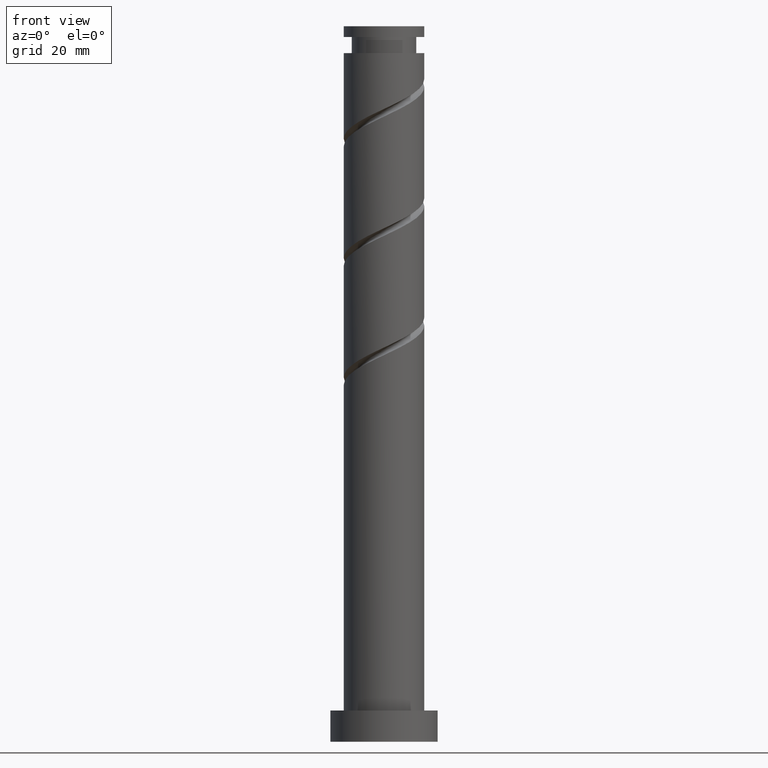
[diagram: clean part render]
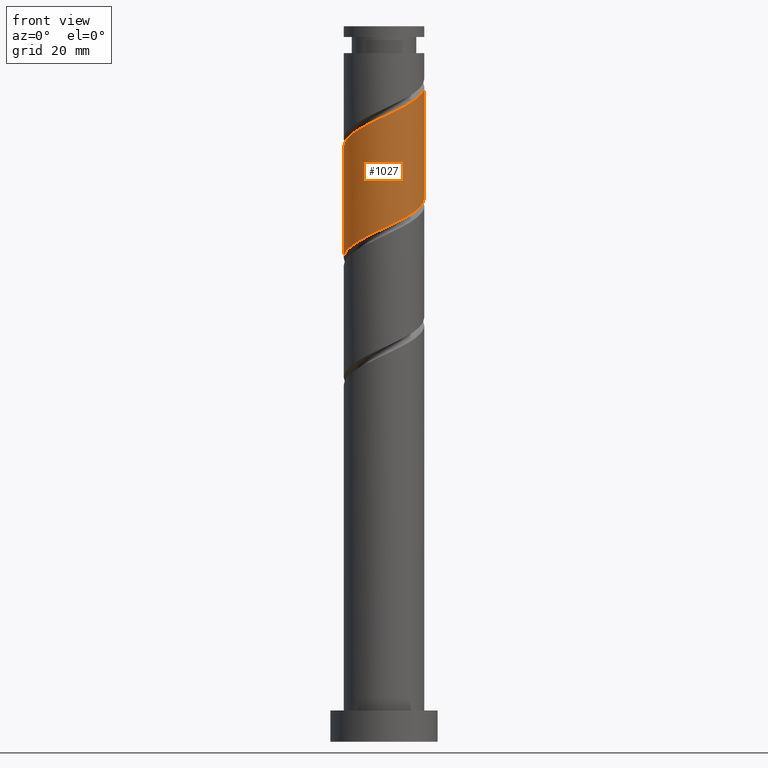
[diagram: same view with one face highlighted and labeled with its STEP entity id]
A machine part, front view. The second image highlights one B-rep face of the part: STEP entity #1027.
In plain terms, the highlighted cylindrical surface (partial cylindrical patch) has radius 9 mm, axis along (-0, -0, -1).
Its self-contained STEP definition (entity closure, byte-faithful):
#1 = CARTESIAN_POINT ( 'NONE',  ( 0.000000000000000000, 0.000000000000000000, 160.0000000000000000 ) ) ;
#8 = DIRECTION ( 'NONE',  ( -1.000000000000000000, 0.000000000000000000, 0.000000000000000000 ) ) ;
#30 = VERTEX_POINT ( 'NONE', #968 ) ;
#52 = DIRECTION ( 'NONE',  ( -0.000000000000000000, -0.000000000000000000, -1.000000000000000000 ) ) ;
#81 = CARTESIAN_POINT ( 'NONE',  ( 7.202715327721826988, -5.549354911298588711, 143.6846413087014014 ) ) ;
#102 = CARTESIAN_POINT ( 'NONE',  ( -0.7664509328121148490, -8.967304665705954747, 139.4422170662771521 ) ) ;
#104 = CARTESIAN_POINT ( 'NONE',  ( 8.910698058065477767, -1.809394412984799194, 120.6543382783983986 ) ) ;
#109 = CARTESIAN_POINT ( 'NONE',  ( 7.278955304606603782, -5.293090748658986655, 118.8361564602165572 ) ) ;
#157 = EDGE_CURVE ( 'NONE', #30, #462, #1073, .T. ) ;
#171 = DIRECTION ( 'NONE',  ( -0.000000000000000000, -0.000000000000000000, -1.000000000000000000 ) ) ;
#191 = CARTESIAN_POINT ( 'NONE',  ( -8.985107774542241188, -0.5175309458001439156, 133.3816110056711750 ) ) ;
#213 = CARTESIAN_POINT ( 'NONE',  ( 8.999999999999998224, -0.2589797387144074370, 121.3816947529810761 ) ) ;
#237 = CARTESIAN_POINT ( 'NONE',  ( -8.474388695875221700, -3.295327640004063863, 109.7452473693074779 ) ) ;
#241 = ORIENTED_EDGE ( 'NONE', *, *, #811, .F. ) ;
#319 = VECTOR ( 'NONE', #52, 1000.000000000000000 ) ;
#337 = CARTESIAN_POINT ( 'NONE',  ( 9.000000000000000000, -9.333056118981858398E-15, 121.5037927576993013 ) ) ;
#354 = CARTESIAN_POINT ( 'NONE',  ( -4.467817212817360328, -7.919157617866033227, 137.6240352480953959 ) ) ;
#362 = CARTESIAN_POINT ( 'NONE',  ( -6.275118063817827441, -6.451580681131343198, 111.5634291874893051 ) ) ;
#462 = VERTEX_POINT ( 'NONE', #958 ) ;
#469 = CARTESIAN_POINT ( 'NONE',  ( -8.766953093447099832, -2.034830080694284948, 109.1391867632468688 ) ) ;
#485 = CARTESIAN_POINT ( 'NONE',  ( 6.275118063817835434, -6.451580681131357409, 143.0785807026408349 ) ) ;
#498 = ORIENTED_EDGE ( 'NONE', *, *, #1202, .F. ) ;
#504 = CARTESIAN_POINT ( 'NONE',  ( 4.467817212817351447, -7.919157617866023458, 117.0179746420347584 ) ) ;
#592 = VERTEX_POINT ( 'NONE', #708 ) ;
#593 = AXIS2_PLACEMENT_3D ( 'NONE', #1, #1543, #8 ) ;
#598 = CARTESIAN_POINT ( 'NONE',  ( -3.261785956098923300, -8.388131638010701607, 138.2300958541559908 ) ) ;
#600 = CARTESIAN_POINT ( 'NONE',  ( -3.059101939827581162, -8.562496326743483266, 113.3816110056711466 ) ) ;
#606 = CARTESIAN_POINT ( 'NONE',  ( -6.517923746803846008, -6.339646524420995632, 136.4119140359741493 ) ) ;
#607 = CARTESIAN_POINT ( 'NONE',  ( -7.838552011798517682, -4.422341275651318959, 110.3513079753681012 ) ) ;
#614 = CARTESIAN_POINT ( 'NONE',  ( 8.039986862409367774, -4.246534972896991000, 119.4422170662772089 ) ) ;
#618 = CARTESIAN_POINT ( 'NONE',  ( -7.278955304606614440, -5.293090748658996425, 135.8058534299135545 ) ) ;
#624 = CARTESIAN_POINT ( 'NONE',  ( -9.000000000000000000, 7.478410351748280545E-15, 108.1704594243659585 ) ) ;
#642 = FACE_OUTER_BOUND ( 'NONE', #1039, .T. ) ;
#708 = CARTESIAN_POINT ( 'NONE',  ( -9.000000000000012434, -4.726355342304877029E-15, 133.1382171324308672 ) ) ;
#711 = CARTESIAN_POINT ( 'NONE',  ( -8.910698058065491978, -1.809394412984797196, 133.9876716117317130 ) ) ;
#729 = CARTESIAN_POINT ( 'NONE',  ( 1.790977386791916537, -8.820000000000012719, 140.6543382783983702 ) ) ;
#730 = CARTESIAN_POINT ( 'NONE',  ( 2.055754699380476502, -8.857105658155353112, 115.8058534299135403 ) ) ;
#737 = CARTESIAN_POINT ( 'NONE',  ( 9.000000000000015987, -1.030760346466102817, 145.9855905127928111 ) ) ;
#749 = VECTOR ( 'NONE', #171, 1000.000000000000000 ) ;
#753 = CARTESIAN_POINT ( 'NONE',  ( -9.000000000000001776, -1.030760346466101929, 108.6564193773372580 ) ) ;
#810 = CARTESIAN_POINT ( 'NONE',  ( 9.000000000000001776, 1.102182119232617911E-15, 160.0000000000000000 ) ) ;
#811 = EDGE_CURVE ( 'NONE', #462, #1068, #860, .T. ) ;
#835 = CARTESIAN_POINT ( 'NONE',  ( -9.000000000000012434, -4.726355342304877029E-15, 133.1382171324308672 ) ) ;
#850 = ORIENTED_EDGE ( 'NONE', *, *, #1154, .T. ) ;
#860 =( BOUNDED_CURVE ( )  B_SPLINE_CURVE ( 2, ( #337, #213, #1104, #104, #1004, #614, #109, #1642, #1117, #504, #1257, #730, #1634, #998, #1518, #600, #1402, #1618, #362, #1012, #607, #237, #469, #753, #624 ),
 .UNSPECIFIED., .F., .T. ) 
 B_SPLINE_CURVE_WITH_KNOTS ( ( 3, 2, 2, 2, 2, 2, 2, 2, 2, 2, 2, 2, 3 ),
 ( 0.5545252162417513286, 0.5568181818181817677, 0.5681818181818182323, 0.5795454545454545858, 0.5909090909090909394, 0.6022727272727272929, 0.6136363636363636465, 0.6250000000000000000, 0.6363636363636363535, 0.6477272727272727071, 0.6590909090909090606, 0.6704545454545454142, 0.6795252162417513286 ),
 .UNSPECIFIED. ) 
 CURVE ( )  GEOMETRIC_REPRESENTATION_ITEM ( )  RATIONAL_B_SPLINE_CURVE ( ( 0.9061101570135515759, 0.9072237824201336842, 0.9090909090909110590, 0.8998376744372134084, 0.9090909090909110590, 0.8998376744372134084, 0.9090909090909110590, 0.8998376744372134084, 0.9090909090909110590, 0.8998376744372134084, 0.9090909090909110590, 0.8998376744372134084, 0.9090909090909110590, 0.8998376744372134084, 0.9090909090909110590, 0.8998376744372134084, 0.9090909090909110590, 0.8998376744372134084, 0.9090909090909110590, 0.8998376744372134084, 0.9090909090909110590, 0.8998376744372134084, 0.9090909090909110590, 0.9017048011079908942, 0.9061101570135515759 ) ) 
 REPRESENTATION_ITEM ( '' )  );
#869 = ORIENTED_EDGE ( 'NONE', *, *, #157, .F. ) ;
#958 = CARTESIAN_POINT ( 'NONE',  ( 9.000000000000000000, -9.333056118981855243E-15, 121.5037927576993013 ) ) ;
#961 = CARTESIAN_POINT ( 'NONE',  ( -9.000000000000001776, 0.000000000000000000, 160.0000000000000000 ) ) ;
#968 = CARTESIAN_POINT ( 'NONE',  ( 9.000000000000012434, 4.337478004013969615E-15, 146.4715504657642100 ) ) ;
#983 = CARTESIAN_POINT ( 'NONE',  ( 8.474388695875234134, -3.295327640004067860, 144.8967625208225911 ) ) ;
#990 = CARTESIAN_POINT ( 'NONE',  ( 4.203311369870710301, -7.958151388853812236, 141.8664594905196452 ) ) ;
#998 = CARTESIAN_POINT ( 'NONE',  ( -0.5228528337562536876, -9.077503673256517303, 114.5937322177923363 ) ) ;
#1003 = CARTESIAN_POINT ( 'NONE',  ( 7.838552011798531005, -4.422341275651331394, 144.2907019147620531 ) ) ;
#1004 = CARTESIAN_POINT ( 'NONE',  ( 8.475342460237424547, -3.027964692940894320, 120.0482776723378038 ) ) ;
#1012 = CARTESIAN_POINT ( 'NONE',  ( -7.202715327721820771, -5.549354911298577164, 110.9573685814287245 ) ) ;
#1027 = ADVANCED_FACE ( 'NONE', ( #642 ), #1556, .T. ) ;
#1039 = EDGE_LOOP ( 'NONE', ( #869, #498, #850, #241 ) ) ;
#1068 = VERTEX_POINT ( 'NONE', #1316 ) ;
#1073 = LINE ( 'NONE', #810, #319 ) ;
#1084 =( BOUNDED_CURVE ( )  B_SPLINE_CURVE ( 2, ( #835, #1354, #191, #711, #1218, #1617, #618, #606, #1493, #354, #598, #1513, #102, #1401, #729, #1126, #990, #1505, #485, #81, #1003, #983, #1499, #737, #1264 ),
 .UNSPECIFIED., .F., .T. ) 
 B_SPLINE_CURVE_WITH_KNOTS ( ( 3, 2, 2, 2, 2, 2, 2, 2, 2, 2, 2, 2, 3 ),
 ( 0.5545252162417513286, 0.5568181818181818787, 0.5681818181818181213, 0.5795454545454545858, 0.5909090909090908283, 0.6022727272727272929, 0.6136363636363636465, 0.6250000000000000000, 0.6363636363636363535, 0.6477272727272727071, 0.6590909090909091717, 0.6704545454545454142, 0.6795252162417514397 ),
 .UNSPECIFIED. ) 
 CURVE ( )  GEOMETRIC_REPRESENTATION_ITEM ( )  RATIONAL_B_SPLINE_CURVE ( ( 0.9061101570135584593, 0.9072237824201405676, 0.9090909090909180534, 0.8998376744372206248, 0.9090909090909180534, 0.8998376744372206248, 0.9090909090909180534, 0.8998376744372206248, 0.9090909090909180534, 0.8998376744372206248, 0.9090909090909180534, 0.8998376744372206248, 0.9090909090909180534, 0.8998376744372206248, 0.9090909090909180534, 0.8998376744372206248, 0.9090909090909180534, 0.8998376744372206248, 0.9090909090909180534, 0.8998376744372206248, 0.9090909090909180534, 0.8998376744372206248, 0.9090909090909180534, 0.9017048011079979997, 0.9061101570135583483 ) ) 
 REPRESENTATION_ITEM ( '' )  );
#1104 = CARTESIAN_POINT ( 'NONE',  ( 8.985107774542228753, -0.5175309458001469132, 121.2603988844590361 ) ) ;
#1117 = CARTESIAN_POINT ( 'NONE',  ( 5.492870479810592954, -7.129402071143507769, 117.6240352480953959 ) ) ;
#1126 = CARTESIAN_POINT ( 'NONE',  ( 3.059101939827581607, -8.562496326743495700, 141.2603988844589935 ) ) ;
#1154 = EDGE_CURVE ( 'NONE', #592, #1068, #1336, .T. ) ;
#1202 = EDGE_CURVE ( 'NONE', #592, #30, #1084, .T. ) ;
#1218 = CARTESIAN_POINT ( 'NONE',  ( -8.475342460237440534, -3.027964692940896096, 134.5937322177923647 ) ) ;
#1257 = CARTESIAN_POINT ( 'NONE',  ( 3.261785956098913974, -8.388131638010687396, 116.4119140359741493 ) ) ;
#1264 = CARTESIAN_POINT ( 'NONE',  ( 9.000000000000012434, 4.337478004013969615E-15, 146.4715504657642100 ) ) ;
#1316 = CARTESIAN_POINT ( 'NONE',  ( -9.000000000000000000, 7.478410351748280545E-15, 108.1704594243659727 ) ) ;
#1336 = LINE ( 'NONE', #961, #749 ) ;
#1354 = CARTESIAN_POINT ( 'NONE',  ( -9.000000000000014211, -0.2589797387143936702, 133.2603151371490924 ) ) ;
#1401 = CARTESIAN_POINT ( 'NONE',  ( 0.5228528337562502459, -9.077503673256527961, 140.0482776723377469 ) ) ;
#1402 = CARTESIAN_POINT ( 'NONE',  ( -4.203311369870706748, -7.958151388853796249, 112.7755503996105091 ) ) ;
#1493 = CARTESIAN_POINT ( 'NONE',  ( -5.492870479810604500, -7.129402071143515762, 137.0179746420348010 ) ) ;
#1499 = CARTESIAN_POINT ( 'NONE',  ( 8.766953093447114043, -2.034830080694291166, 145.5028231268832712 ) ) ;
#1505 = CARTESIAN_POINT ( 'NONE',  ( 5.347520799913839440, -7.353806450964122554, 142.4725200965802401 ) ) ;
#1513 = CARTESIAN_POINT ( 'NONE',  ( -2.055754699380479611, -8.857105658155365546, 138.8361564602165572 ) ) ;
#1518 = CARTESIAN_POINT ( 'NONE',  ( -1.790977386791916981, -8.819999999999996732, 113.9876716117317272 ) ) ;
#1543 = DIRECTION ( 'NONE',  ( -0.000000000000000000, -0.000000000000000000, -1.000000000000000000 ) ) ;
#1556 = CYLINDRICAL_SURFACE ( 'NONE', #593, 9.000000000000001776 ) ;
#1617 = CARTESIAN_POINT ( 'NONE',  ( -8.039986862409380208, -4.246534972896994553, 135.1997928238529028 ) ) ;
#1618 = CARTESIAN_POINT ( 'NONE',  ( -5.347520799913833223, -7.353806450964112784, 112.1694897935499142 ) ) ;
#1634 = CARTESIAN_POINT ( 'NONE',  ( 0.7664509328121095200, -8.967304665705933431, 115.1997928238529454 ) ) ;
#1642 = CARTESIAN_POINT ( 'NONE',  ( 6.517923746803837126, -6.339646524420986751, 118.2300958541559623 ) ) ;